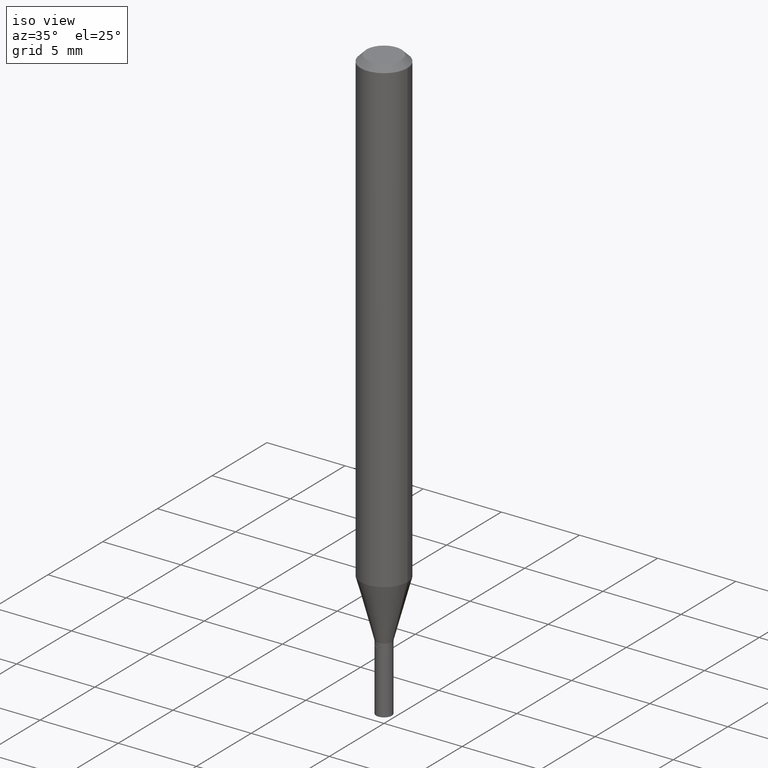
[diagram: clean part render]
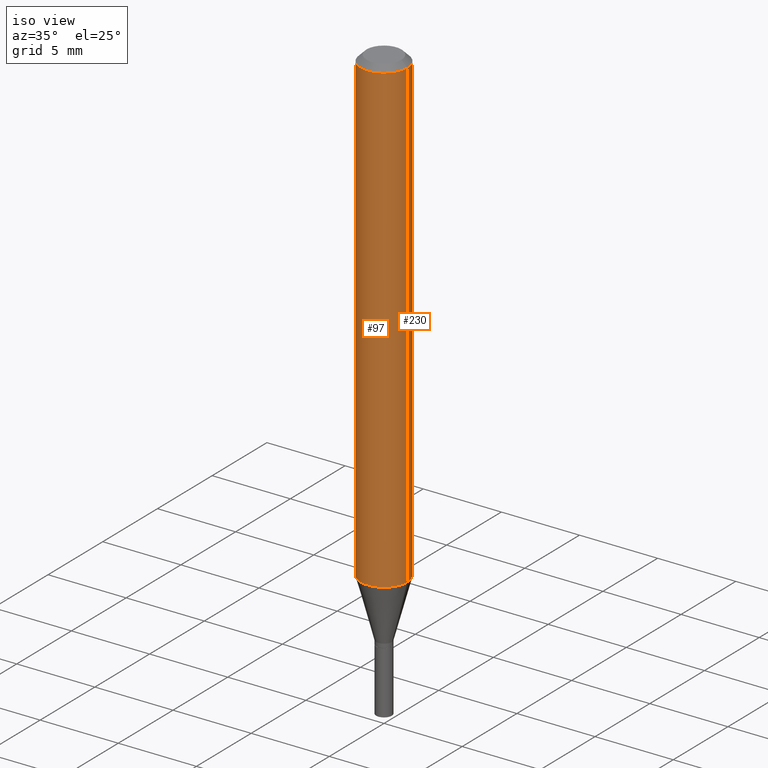
[diagram: same view with one multi-face feature highlighted, each face labeled with its STEP entity id]
A machine part, iso view. The highlighted faces form ONE feature: a constant-radius fillet chain: 2 tangent blend faces with common blend radius 1.4999 mm. The faces share edges in the B-rep.
Their STEP definitions:
[1] entity #230 (Cylinder):
#5 = CARTESIAN_POINT ( 'NONE',  ( 2.898232195509746702E-29, -4.137907464067076414E-15, -1.185143800722164409 ) ) ;
#8 = LINE ( 'NONE', #148, #243 ) ;
#18 = DIRECTION ( 'NONE',  ( -2.445468806185136597E-29, 3.491481338843145583E-15, 1.000000000000000000 ) ) ;
#23 = ORIENTED_EDGE ( 'NONE', *, *, #45, .F. ) ;
#31 = CARTESIAN_POINT ( 'NONE',  ( 0.05905000000000001914, -4.123439461173741806E-16, 2.879382386107500921E-30 ) ) ;
#45 = EDGE_CURVE ( 'NONE', #438, #159, #231, .T. ) ;
#60 = CARTESIAN_POINT ( 'NONE',  ( -0.05905000000000001914, -3.718331978600737710E-15, -1.185143800722164409 ) ) ;
#78 = VERTEX_POINT ( 'NONE', #60 ) ;
#98 = ORIENTED_EDGE ( 'NONE', *, *, #277, .T. ) ;
#116 = DIRECTION ( 'NONE',  ( 1.000000000000000000, -6.982962677686266711E-15, 4.876176775795935793E-29 ) ) ;
#132 = DIRECTION ( 'NONE',  ( -2.445468806185136877E-29, 3.491481338843145188E-15, 1.000000000000000000 ) ) ;
#133 = DIRECTION ( 'NONE',  ( 1.000000000000000000, -6.982962677686266711E-15, 0.000000000000000000 ) ) ;
#139 = CARTESIAN_POINT ( 'NONE',  ( 3.668203209277705088E-31, -5.237222008264718399E-17, -0.01499999999999999944 ) ) ;
#141 = VERTEX_POINT ( 'NONE', #240 ) ;
#148 = CARTESIAN_POINT ( 'NONE',  ( -0.05905000000000001914, 4.195754854663392958E-16, -2.904631170795522943E-30 ) ) ;
#156 = CYLINDRICAL_SURFACE ( 'NONE', #457, 0.05905000000000001914 ) ;
#159 = VERTEX_POINT ( 'NONE', #454 ) ;
#178 = CARTESIAN_POINT ( 'NONE',  ( 0.05905000000000001914, -4.550251410184451334E-15, -1.185143800722164409 ) ) ;
#230 = ADVANCED_FACE ( 'NONE', ( #451 ), #156, .T. ) ;
#231 = LINE ( 'NONE', #31, #242 ) ;
#239 = EDGE_LOOP ( 'NONE', ( #98, #346, #426, #23 ) ) ;
#240 = CARTESIAN_POINT ( 'NONE',  ( -0.05905000000000001914, -1.675564356608522648E-15, -0.01499999999999999944 ) ) ;
#242 = VECTOR ( 'NONE', #132, 39.37007874015748143 ) ;
#243 = VECTOR ( 'NONE', #301, 39.37007874015748143 ) ;
#254 = DIRECTION ( 'NONE',  ( -2.445468806185136597E-29, 3.491481338843145583E-15, 1.000000000000000000 ) ) ;
#277 = EDGE_CURVE ( 'NONE', #438, #78, #380, .T. ) ;
#301 = DIRECTION ( 'NONE',  ( -2.445468806185136877E-29, 3.491481338843145188E-15, 1.000000000000000000 ) ) ;
#317 = CIRCLE ( 'NONE', #440, 0.05905000000000001914 ) ;
#346 = ORIENTED_EDGE ( 'NONE', *, *, #437, .T. ) ;
#373 = EDGE_CURVE ( 'NONE', #159, #141, #317, .T. ) ;
#380 = CIRCLE ( 'NONE', #425, 0.05905000000000001914 ) ;
#392 = DIRECTION ( 'NONE',  ( -2.445468806185136597E-29, 3.491481338843145583E-15, 1.000000000000000000 ) ) ;
#406 = DIRECTION ( 'NONE',  ( 1.000000000000000000, -6.982962677686270655E-15, 0.000000000000000000 ) ) ;
#425 = AXIS2_PLACEMENT_3D ( 'NONE', #5, #254, #406 ) ;
#426 = ORIENTED_EDGE ( 'NONE', *, *, #373, .F. ) ;
#437 = EDGE_CURVE ( 'NONE', #78, #141, #8, .T. ) ;
#438 = VERTEX_POINT ( 'NONE', #178 ) ;
#440 = AXIS2_PLACEMENT_3D ( 'NONE', #139, #392, #133 ) ;
#447 = CARTESIAN_POINT ( 'NONE',  ( 0.000000000000000000, 0.000000000000000000, 0.000000000000000000 ) ) ;
#451 = FACE_OUTER_BOUND ( 'NONE', #239, .T. ) ;
#454 = CARTESIAN_POINT ( 'NONE',  ( 0.05905000000000001914, -4.647161662000214077E-16, -0.01499999999999999944 ) ) ;
#457 = AXIS2_PLACEMENT_3D ( 'NONE', #447, #18, #116 ) ;
[2] entity #97 (Cylinder):
#8 = LINE ( 'NONE', #148, #243 ) ;
#31 = CARTESIAN_POINT ( 'NONE',  ( 0.05905000000000001914, -4.123439461173741806E-16, 2.879382386107500921E-30 ) ) ;
#45 = EDGE_CURVE ( 'NONE', #438, #159, #231, .T. ) ;
#53 = CIRCLE ( 'NONE', #325, 0.05905000000000001914 ) ;
#55 = EDGE_CURVE ( 'NONE', #141, #159, #213, .T. ) ;
#60 = CARTESIAN_POINT ( 'NONE',  ( -0.05905000000000001914, -3.718331978600737710E-15, -1.185143800722164409 ) ) ;
#66 = AXIS2_PLACEMENT_3D ( 'NONE', #172, #163, #401 ) ;
#78 = VERTEX_POINT ( 'NONE', #60 ) ;
#83 = DIRECTION ( 'NONE',  ( -2.445468806185136597E-29, 3.491481338843145583E-15, 1.000000000000000000 ) ) ;
#94 = ORIENTED_EDGE ( 'NONE', *, *, #55, .F. ) ;
#97 = ADVANCED_FACE ( 'NONE', ( #393 ), #433, .T. ) ;
#120 = CARTESIAN_POINT ( 'NONE',  ( 2.898232195509746702E-29, -4.137907464067076414E-15, -1.185143800722164409 ) ) ;
#125 = CARTESIAN_POINT ( 'NONE',  ( 0.000000000000000000, 0.000000000000000000, 0.000000000000000000 ) ) ;
#132 = DIRECTION ( 'NONE',  ( -2.445468806185136877E-29, 3.491481338843145188E-15, 1.000000000000000000 ) ) ;
#141 = VERTEX_POINT ( 'NONE', #240 ) ;
#148 = CARTESIAN_POINT ( 'NONE',  ( -0.05905000000000001914, 4.195754854663392958E-16, -2.904631170795522943E-30 ) ) ;
#159 = VERTEX_POINT ( 'NONE', #454 ) ;
#163 = DIRECTION ( 'NONE',  ( -2.445468806185136597E-29, 3.491481338843145583E-15, 1.000000000000000000 ) ) ;
#172 = CARTESIAN_POINT ( 'NONE',  ( 3.668203209277705088E-31, -5.237222008264718399E-17, -0.01499999999999999944 ) ) ;
#178 = CARTESIAN_POINT ( 'NONE',  ( 0.05905000000000001914, -4.550251410184451334E-15, -1.185143800722164409 ) ) ;
#212 = ORIENTED_EDGE ( 'NONE', *, *, #45, .T. ) ;
#213 = CIRCLE ( 'NONE', #66, 0.05905000000000001914 ) ;
#231 = LINE ( 'NONE', #31, #242 ) ;
#235 = EDGE_LOOP ( 'NONE', ( #330, #274, #212, #94 ) ) ;
#240 = CARTESIAN_POINT ( 'NONE',  ( -0.05905000000000001914, -1.675564356608522648E-15, -0.01499999999999999944 ) ) ;
#242 = VECTOR ( 'NONE', #132, 39.37007874015748143 ) ;
#243 = VECTOR ( 'NONE', #301, 39.37007874015748143 ) ;
#274 = ORIENTED_EDGE ( 'NONE', *, *, #289, .T. ) ;
#289 = EDGE_CURVE ( 'NONE', #78, #438, #53, .T. ) ;
#301 = DIRECTION ( 'NONE',  ( -2.445468806185136877E-29, 3.491481338843145188E-15, 1.000000000000000000 ) ) ;
#315 = DIRECTION ( 'NONE',  ( 1.000000000000000000, -6.982962677686266711E-15, 4.876176775795935793E-29 ) ) ;
#325 = AXIS2_PLACEMENT_3D ( 'NONE', #120, #83, #388 ) ;
#330 = ORIENTED_EDGE ( 'NONE', *, *, #437, .F. ) ;
#354 = DIRECTION ( 'NONE',  ( -2.445468806185136597E-29, 3.491481338843145583E-15, 1.000000000000000000 ) ) ;
#388 = DIRECTION ( 'NONE',  ( 1.000000000000000000, -6.982962677686270655E-15, 0.000000000000000000 ) ) ;
#393 = FACE_OUTER_BOUND ( 'NONE', #235, .T. ) ;
#401 = DIRECTION ( 'NONE',  ( 1.000000000000000000, -6.982962677686266711E-15, 0.000000000000000000 ) ) ;
#409 = AXIS2_PLACEMENT_3D ( 'NONE', #125, #354, #315 ) ;
#433 = CYLINDRICAL_SURFACE ( 'NONE', #409, 0.05905000000000001914 ) ;
#437 = EDGE_CURVE ( 'NONE', #78, #141, #8, .T. ) ;
#438 = VERTEX_POINT ( 'NONE', #178 ) ;
#454 = CARTESIAN_POINT ( 'NONE',  ( 0.05905000000000001914, -4.647161662000214077E-16, -0.01499999999999999944 ) ) ;